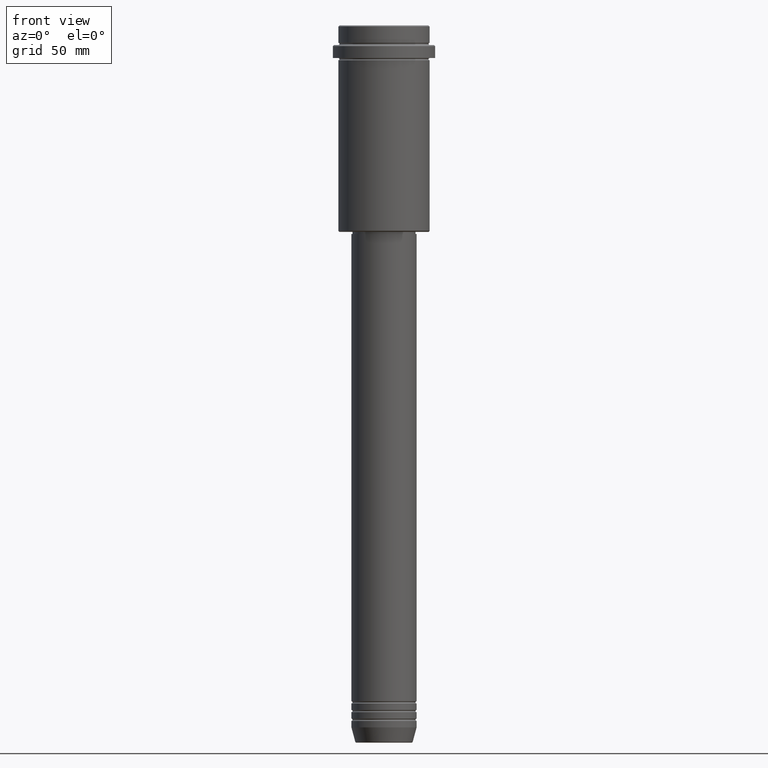
[diagram: clean part render]
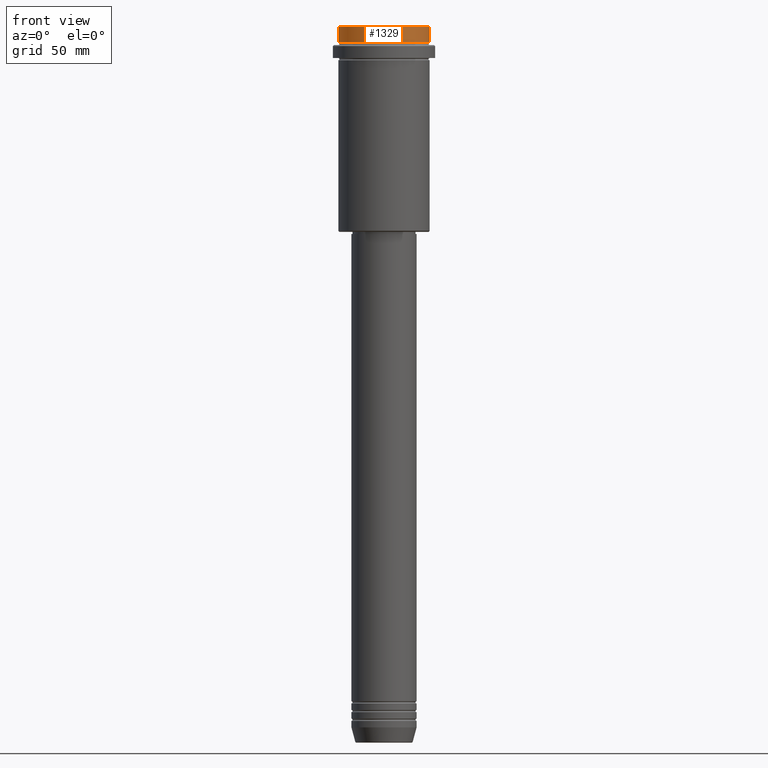
[diagram: same view with one face highlighted and labeled with its STEP entity id]
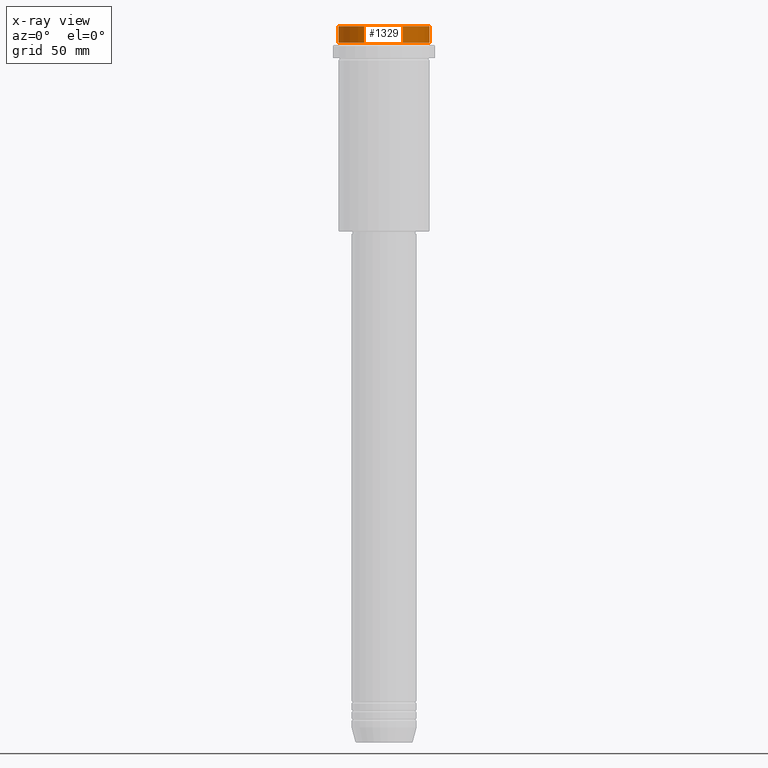
[diagram: x-ray of the same camera — body ghosted, the highlighted face saturated]
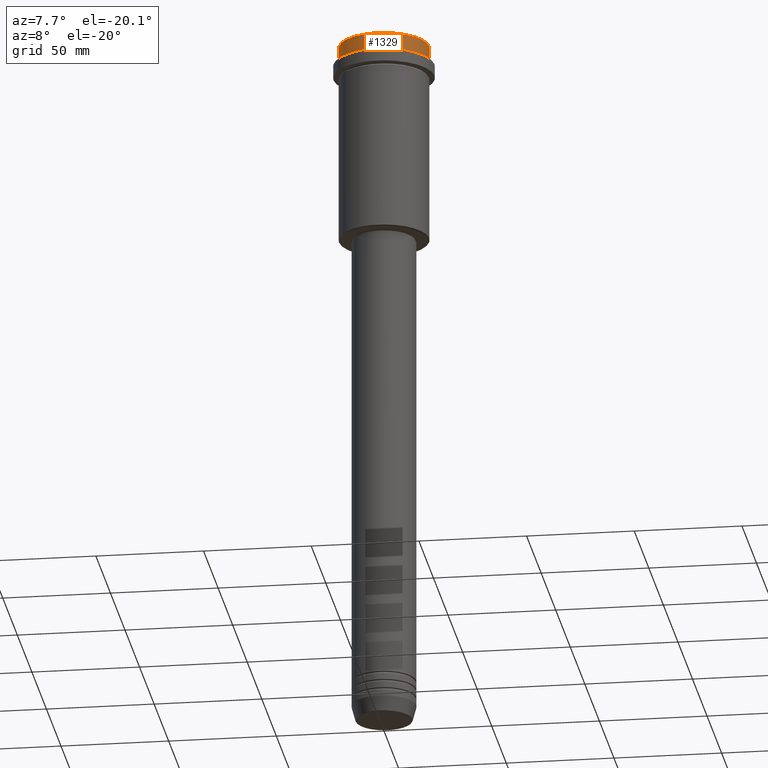
[diagram: same view with one face highlighted and labeled with its STEP entity id]
A machine part, front view. The second image highlights one B-rep face of the part: STEP entity #1329.
The next image is the same camera in x-ray: the body ghosted, the highlighted face saturated — about 0% of this face is hidden behind the body in this view.
A second angle (auxiliary view) of the same face is appended — the face is thin or edge-on in the first view.
In plain terms, the highlighted cylindrical surface (partial cylindrical patch) has radius 21 mm, axis along (-0, -0, 1).
Its self-contained STEP definition (entity closure, byte-faithful):
#4 = VERTEX_POINT ( 'NONE', #1137 ) ;
#17 = VERTEX_POINT ( 'NONE', #1000 ) ;
#55 = CIRCLE ( 'NONE', #1395, 20.99999999999999645 ) ;
#64 = DIRECTION ( 'NONE',  ( -0.000000000000000000, -0.000000000000000000, 1.000000000000000000 ) ) ;
#80 = CARTESIAN_POINT ( 'NONE',  ( -20.99999999999999645, 2.571758278209441267E-15, -0.5000000000000350830 ) ) ;
#182 = ORIENTED_EDGE ( 'NONE', *, *, #809, .T. ) ;
#188 = VECTOR ( 'NONE', #64, 1000.000000000000000 ) ;
#302 = DIRECTION ( 'NONE',  ( -0.000000000000000000, -0.000000000000000000, 1.000000000000000000 ) ) ;
#307 = EDGE_CURVE ( 'NONE', #406, #784, #1392, .T. ) ;
#310 = CARTESIAN_POINT ( 'NONE',  ( -20.99999999999999645, 2.571758278209441267E-15, 0.000000000000000000 ) ) ;
#379 = ORIENTED_EDGE ( 'NONE', *, *, #307, .T. ) ;
#406 = VERTEX_POINT ( 'NONE', #998 ) ;
#419 = AXIS2_PLACEMENT_3D ( 'NONE', #948, #302, #858 ) ;
#502 = ORIENTED_EDGE ( 'NONE', *, *, #1079, .T. ) ;
#605 = LINE ( 'NONE', #1039, #188 ) ;
#635 = DIRECTION ( 'NONE',  ( 0.000000000000000000, 0.000000000000000000, -1.000000000000000000 ) ) ;
#685 = ORIENTED_EDGE ( 'NONE', *, *, #1123, .F. ) ;
#707 = DIRECTION ( 'NONE',  ( -0.000000000000000000, -0.000000000000000000, 1.000000000000000000 ) ) ;
#774 = CARTESIAN_POINT ( 'NONE',  ( 0.000000000000000000, 0.000000000000000000, -0.5000000000000350830 ) ) ;
#784 = VERTEX_POINT ( 'NONE', #80 ) ;
#802 = VECTOR ( 'NONE', #839, 1000.000000000000000 ) ;
#809 = EDGE_CURVE ( 'NONE', #17, #406, #605, .T. ) ;
#839 = DIRECTION ( 'NONE',  ( -0.000000000000000000, -0.000000000000000000, 1.000000000000000000 ) ) ;
#848 = CARTESIAN_POINT ( 'NONE',  ( 0.000000000000000000, 0.000000000000000000, -7.999999999999998224 ) ) ;
#858 = DIRECTION ( 'NONE',  ( 1.000000000000000000, 0.000000000000000000, 0.000000000000000000 ) ) ;
#948 = CARTESIAN_POINT ( 'NONE',  ( 0.000000000000000000, 0.000000000000000000, 0.000000000000000000 ) ) ;
#998 = CARTESIAN_POINT ( 'NONE',  ( 20.99999999999999645, 0.000000000000000000, -0.5000000000000350830 ) ) ;
#1000 = CARTESIAN_POINT ( 'NONE',  ( 20.99999999999999645, 0.000000000000000000, -7.999999999999998224 ) ) ;
#1039 = CARTESIAN_POINT ( 'NONE',  ( 20.99999999999999645, 0.000000000000000000, 0.000000000000000000 ) ) ;
#1059 = CYLINDRICAL_SURFACE ( 'NONE', #419, 20.99999999999999645 ) ;
#1070 = DIRECTION ( 'NONE',  ( 1.000000000000000000, 0.000000000000000000, 0.000000000000000000 ) ) ;
#1079 = EDGE_CURVE ( 'NONE', #4, #17, #55, .T. ) ;
#1123 = EDGE_CURVE ( 'NONE', #4, #784, #1287, .T. ) ;
#1137 = CARTESIAN_POINT ( 'NONE',  ( -20.99999999999999645, 2.571758278209441267E-15, -7.999999999999998224 ) ) ;
#1143 = AXIS2_PLACEMENT_3D ( 'NONE', #774, #635, #1070 ) ;
#1147 = DIRECTION ( 'NONE',  ( 1.000000000000000000, 0.000000000000000000, 0.000000000000000000 ) ) ;
#1214 = EDGE_LOOP ( 'NONE', ( #685, #502, #182, #379 ) ) ;
#1287 = LINE ( 'NONE', #310, #802 ) ;
#1329 = ADVANCED_FACE ( 'NONE', ( #1382 ), #1059, .T. ) ;
#1382 = FACE_OUTER_BOUND ( 'NONE', #1214, .T. ) ;
#1392 = CIRCLE ( 'NONE', #1143, 20.99999999999999645 ) ;
#1395 = AXIS2_PLACEMENT_3D ( 'NONE', #848, #707, #1147 ) ;